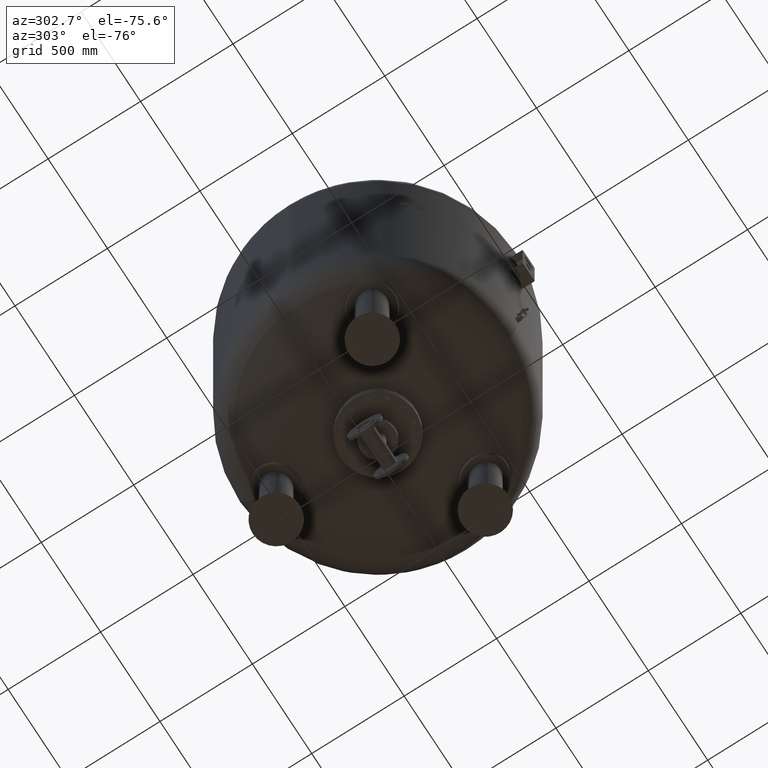
[diagram: clean part render]
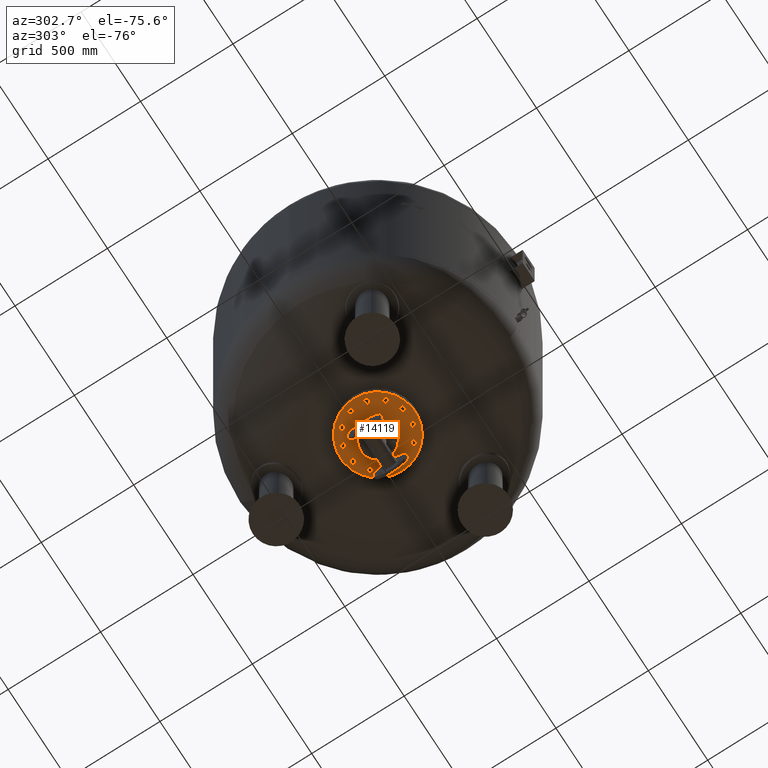
[diagram: same view with one face highlighted and labeled with its STEP entity id]
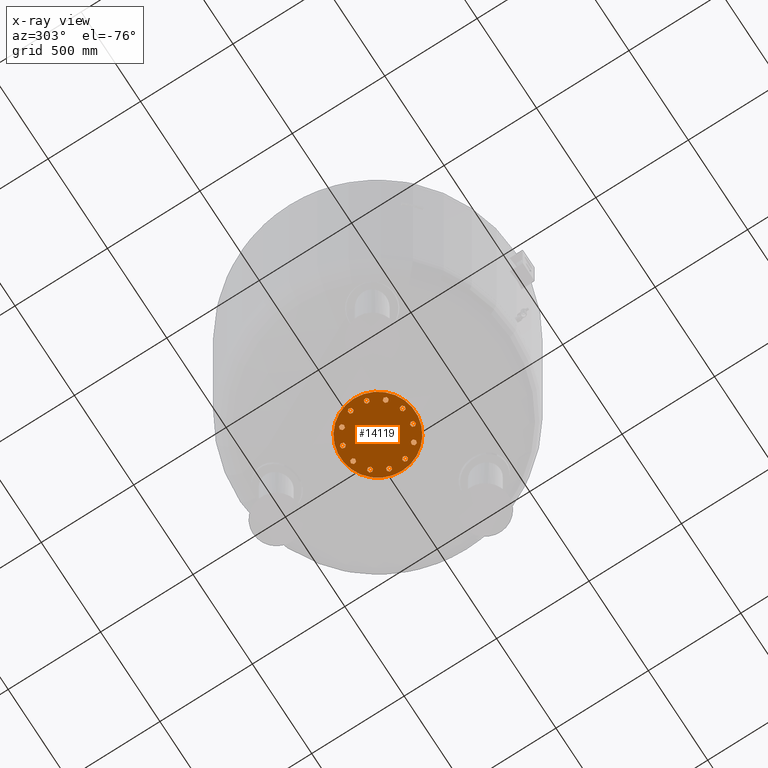
[diagram: x-ray of the same camera — body ghosted, the highlighted face saturated]
A machine part, auxiliary view. The second image highlights one B-rep face of the part: STEP entity #14119.
The next image is the same camera in x-ray: the body ghosted, the highlighted face saturated — about 0% of this face is hidden behind the body in this view.
In plain terms, the highlighted planar face has unit normal (0, 0, -1).
Its self-contained STEP definition (entity closure, byte-faithful):
#5555=CARTESIAN_POINT('',(202.500000000000000,-9.184851E-015,406.0));
#5556=VERTEX_POINT('',#5555);
#5572=CARTESIAN_POINT('',(-202.500000000000000,-3.398313E-014,406.0));
#5573=VERTEX_POINT('',#5572);
#5580=CARTESIAN_POINT('',(0.0,-9.184851E-015,406.0));
#5581=DIRECTION('',(0.0,0.0,1.0));
#5582=DIRECTION('',(1.0,0.0,0.0));
#5583=AXIS2_PLACEMENT_3D('',#5580,#5581,#5582);
#5584=CIRCLE('',#5583,202.500000000000000);
#5585=EDGE_CURVE('',#5573,#5556,#5584,.T.);
#7535=CARTESIAN_POINT('',(0.0,38.049999999999990,406.0));
#7536=VERTEX_POINT('',#7535);
#7552=CARTESIAN_POINT('',(-4.659627E-015,-38.050000000000011,406.0));
#7553=VERTEX_POINT('',#7552);
#7560=CARTESIAN_POINT('',(0.0,-9.184851E-015,406.0));
#7561=DIRECTION('',(0.0,0.0,1.0));
#7562=DIRECTION('',(0.0,1.0,0.0));
#7563=AXIS2_PLACEMENT_3D('',#7560,#7561,#7562);
#7564=CIRCLE('',#7563,38.049999999999997);
#7565=EDGE_CURVE('',#7536,#7553,#7564,.T.);
#7576=CARTESIAN_POINT('',(0.0,-9.184851E-015,406.0));
#7577=DIRECTION('',(0.0,0.0,1.0));
#7578=DIRECTION('',(0.0,1.0,0.0));
#7579=AXIS2_PLACEMENT_3D('',#7576,#7577,#7578);
#7580=CIRCLE('',#7579,38.049999999999997);
#7581=EDGE_CURVE('',#7553,#7536,#7580,.T.);
#11609=CARTESIAN_POINT('',(-157.729139400922860,30.104983413641001,406.0));
#11610=VERTEX_POINT('',#11609);
#11611=CARTESIAN_POINT('',(-148.288440171855850,40.247625971983254,406.0));
#11612=VERTEX_POINT('',#11611);
#11613=CARTESIAN_POINT('',(-157.729139400922860,30.104983413641001,406.0));
#11614=DIRECTION('',(0.681323780155013,0.731982176419128,0.0));
#11615=VECTOR('',#11614,13.856406460551087);
#11616=LINE('',#11613,#11615);
#11617=EDGE_CURVE('',#11610,#11612,#11616,.T.);
#11649=CARTESIAN_POINT('',(-171.233275132485970,33.209547496330096,406.0));
#11650=VERTEX_POINT('',#11649);
#11651=CARTESIAN_POINT('',(-171.233275132485970,33.209547496330096,406.0));
#11652=DIRECTION('',(0.974577049973894,-0.224052613607122,0.0));
#11653=VECTOR('',#11652,13.856406460551117);
#11654=LINE('',#11651,#11653);
#11655=EDGE_CURVE('',#11650,#11610,#11654,.T.);
#11680=CARTESIAN_POINT('',(-175.296711634982050,46.456754137361408,406.0));
#11681=VERTEX_POINT('',#11680);
#11682=CARTESIAN_POINT('',(-175.296711634982050,46.456754137361408,406.0));
#11683=DIRECTION('',(0.293253269818881,-0.956034790026249,0.0));
#11684=VECTOR('',#11683,13.856406460551076);
#11685=LINE('',#11682,#11684);
#11686=EDGE_CURVE('',#11681,#11650,#11685,.T.);
#11711=CARTESIAN_POINT('',(-152.351876674351930,53.494832613014573,406.0));
#11712=VERTEX_POINT('',#11711);
#11713=CARTESIAN_POINT('',(-148.288440171855850,40.247625971983254,406.0));
#11714=DIRECTION('',(-0.293253269818881,0.956034790026249,0.0));
#11715=VECTOR('',#11714,13.856406460551083);
#11716=LINE('',#11713,#11715);
#11717=EDGE_CURVE('',#11612,#11712,#11716,.T.);
#11742=CARTESIAN_POINT('',(-165.856012405915040,56.599396695703675,406.0));
#11743=VERTEX_POINT('',#11742);
#11744=CARTESIAN_POINT('',(-152.351876674351930,53.494832613014573,406.0));
#11745=DIRECTION('',(-0.974577049973894,0.224052613607123,0.0));
#11746=VECTOR('',#11745,13.856406460551119);
#11747=LINE('',#11744,#11746);
#11748=EDGE_CURVE('',#11712,#11743,#11747,.T.);
#11773=CARTESIAN_POINT('',(-165.856012405915040,56.599396695703675,406.0));
#11774=DIRECTION('',(-0.681323780155012,-0.731982176419129,0.0));
#11775=VECTOR('',#11774,13.856406460551096);
#11776=LINE('',#11773,#11775);
#11777=EDGE_CURVE('',#11743,#11681,#11776,.T.);
#11809=CARTESIAN_POINT('',(-121.544949931435720,104.936250117183760,406.0));
#11810=VERTEX_POINT('',#11809);
#11811=CARTESIAN_POINT('',(-108.297743290404380,108.999686619679820,406.0));
#11812=VERTEX_POINT('',#11811);
#11813=CARTESIAN_POINT('',(-121.544949931435720,104.936250117183760,406.0));
#11814=DIRECTION('',(0.956034790026250,0.293253269818880,0.0));
#11815=VECTOR('',#11814,13.856406460551101);
#11816=LINE('',#11813,#11815);
#11817=EDGE_CURVE('',#11810,#11812,#11816,.T.);
#11849=CARTESIAN_POINT('',(-131.687592489777960,114.376949346250780,406.0));
#11850=VERTEX_POINT('',#11849);
#11851=CARTESIAN_POINT('',(-131.687592489777960,114.376949346250780,406.0));
#11852=DIRECTION('',(0.731982176419127,-0.681323780155014,0.0));
#11853=VECTOR('',#11852,13.856406460551080);
#11854=LINE('',#11851,#11853);
#11855=EDGE_CURVE('',#11850,#11810,#11854,.T.);
#11880=CARTESIAN_POINT('',(-128.583028407088880,127.881085077813880,406.0));
#11881=VERTEX_POINT('',#11880);
#11882=CARTESIAN_POINT('',(-128.583028407088880,127.881085077813880,406.0));
#11883=DIRECTION('',(-0.224052613607122,-0.974577049973894,0.0));
#11884=VECTOR('',#11883,13.856406460551099);
#11885=LINE('',#11882,#11884);
#11886=EDGE_CURVE('',#11881,#11850,#11885,.T.);
#11911=CARTESIAN_POINT('',(-105.193179207715300,122.503822351242900,406.0));
#11912=VERTEX_POINT('',#11911);
#11913=CARTESIAN_POINT('',(-108.297743290404380,108.999686619679820,406.0));
#11914=DIRECTION('',(0.224052613607122,0.974577049973894,0.0));
#11915=VECTOR('',#11914,13.856406460551087);
#11916=LINE('',#11913,#11915);
#11917=EDGE_CURVE('',#11812,#11912,#11916,.T.);
#11942=CARTESIAN_POINT('',(-115.335821766057560,131.944521580309950,406.0));
#11943=VERTEX_POINT('',#11942);
#11944=CARTESIAN_POINT('',(-105.193179207715300,122.503822351242900,406.0));
#11945=DIRECTION('',(-0.731982176419127,0.681323780155014,0.0));
#11946=VECTOR('',#11945,13.856406460551121);
#11947=LINE('',#11944,#11946);
#11948=EDGE_CURVE('',#11912,#11943,#11947,.T.);
#11973=CARTESIAN_POINT('',(-115.335821766057560,131.944521580309950,406.0));
#11974=DIRECTION('',(-0.956034790026249,-0.293253269818881,0.0));
#11975=VECTOR('',#11974,13.856406460551076);
#11976=LINE('',#11973,#11975);
#11977=EDGE_CURVE('',#11943,#11881,#11976,.T.);
#12009=CARTESIAN_POINT('',(-52.792889283739193,151.649933345076730,406.0));
#12010=VERTEX_POINT('',#12009);
#12011=CARTESIAN_POINT('',(-39.288753552176118,148.545369262387680,406.0));
#12012=VERTEX_POINT('',#12011);
#12013=CARTESIAN_POINT('',(-52.792889283739193,151.649933345076730,406.0));
#12014=DIRECTION('',(0.974577049973894,-0.224052613607120,0.0));
#12015=VECTOR('',#12014,13.856406460551073);
#12016=LINE('',#12013,#12015);
#12017=EDGE_CURVE('',#12010,#12012,#12016,.T.);
#12049=CARTESIAN_POINT('',(-56.856325786235274,164.897139986108100,406.0));
#12050=VERTEX_POINT('',#12049);
#12051=CARTESIAN_POINT('',(-56.856325786235274,164.897139986108100,406.0));
#12052=DIRECTION('',(0.293253269818881,-0.956034790026249,0.0));
#12053=VECTOR('',#12052,13.856406460551133);
#12054=LINE('',#12051,#12053);
#12055=EDGE_CURVE('',#12050,#12010,#12054,.T.);
#12080=CARTESIAN_POINT('',(-47.415626557168267,175.039782544450330,406.0));
#12081=VERTEX_POINT('',#12080);
#12082=CARTESIAN_POINT('',(-47.415626557168267,175.039782544450330,406.0));
#12083=DIRECTION('',(-0.681323780155014,-0.731982176419128,0.0));
#12084=VECTOR('',#12083,13.856406460551069);
#12085=LINE('',#12082,#12084);
#12086=EDGE_CURVE('',#12081,#12050,#12085,.T.);
#12111=CARTESIAN_POINT('',(-29.848054323109103,158.688011820729910,406.0));
#12112=VERTEX_POINT('',#12111);
#12113=CARTESIAN_POINT('',(-39.288753552176118,148.545369262387680,406.0));
#12114=DIRECTION('',(0.681323780155014,0.731982176419127,0.0));
#12115=VECTOR('',#12114,13.856406460551076);
#12116=LINE('',#12113,#12115);
#12117=EDGE_CURVE('',#12012,#12112,#12116,.T.);
#12142=CARTESIAN_POINT('',(-33.911490825605156,171.935218461761250,406.0));
#12143=VERTEX_POINT('',#12142);
#12144=CARTESIAN_POINT('',(-29.848054323109103,158.688011820729910,406.0));
#12145=DIRECTION('',(-0.293253269818879,0.956034790026250,0.0));
#12146=VECTOR('',#12145,13.856406460551097);
#12147=LINE('',#12144,#12146);
#12148=EDGE_CURVE('',#12112,#12143,#12147,.T.);
#12173=CARTESIAN_POINT('',(-33.911490825605156,171.935218461761250,406.0));
#12174=DIRECTION('',(-0.974577049973894,0.224052613607121,0.0));
#12175=VECTOR('',#12174,13.856406460551113);
#12176=LINE('',#12173,#12175);
#12177=EDGE_CURVE('',#12143,#12081,#12176,.T.);
#12209=CARTESIAN_POINT('',(30.104983413641008,157.729139400922860,406.0));
#12210=VERTEX_POINT('',#12209);
#12211=CARTESIAN_POINT('',(40.247625971983268,148.288440171855850,406.0));
#12212=VERTEX_POINT('',#12211);
#12213=CARTESIAN_POINT('',(30.104983413641008,157.729139400922860,406.0));
#12214=DIRECTION('',(0.731982176419128,-0.681323780155013,0.0));
#12215=VECTOR('',#12214,13.856406460551090);
#12216=LINE('',#12213,#12215);
#12217=EDGE_CURVE('',#12210,#12212,#12216,.T.);
#12249=CARTESIAN_POINT('',(33.209547496330110,171.233275132485970,406.0));
#12250=VERTEX_POINT('',#12249);
#12251=CARTESIAN_POINT('',(33.209547496330110,171.233275132485970,406.0));
#12252=DIRECTION('',(-0.224052613607123,-0.974577049973894,0.0));
#12253=VECTOR('',#12252,13.856406460551119);
#12254=LINE('',#12251,#12253);
#12255=EDGE_CURVE('',#12250,#12210,#12254,.T.);
#12280=CARTESIAN_POINT('',(46.456754137361422,175.296711634982050,406.0));
#12281=VERTEX_POINT('',#12280);
#12282=CARTESIAN_POINT('',(46.456754137361422,175.296711634982050,406.0));
#12283=DIRECTION('',(-0.956034790026249,-0.293253269818881,0.0));
#12284=VECTOR('',#12283,13.856406460551076);
#12285=LINE('',#12282,#12284);
#12286=EDGE_CURVE('',#12281,#12250,#12285,.T.);
#12311=CARTESIAN_POINT('',(53.494832613014587,152.351876674351930,406.0));
#12312=VERTEX_POINT('',#12311);
#12313=CARTESIAN_POINT('',(40.247625971983268,148.288440171855850,406.0));
#12314=DIRECTION('',(0.956034790026249,0.293253269818881,0.0));
#12315=VECTOR('',#12314,13.856406460551083);
#12316=LINE('',#12313,#12315);
#12317=EDGE_CURVE('',#12212,#12312,#12316,.T.);
#12342=CARTESIAN_POINT('',(56.599396695703689,165.856012405915040,406.0));
#12343=VERTEX_POINT('',#12342);
#12344=CARTESIAN_POINT('',(53.494832613014587,152.351876674351930,406.0));
#12345=DIRECTION('',(0.224052613607123,0.974577049973894,0.0));
#12346=VECTOR('',#12345,13.856406460551119);
#12347=LINE('',#12344,#12346);
#12348=EDGE_CURVE('',#12312,#12343,#12347,.T.);
#12373=CARTESIAN_POINT('',(56.599396695703689,165.856012405915040,406.0));
#12374=DIRECTION('',(-0.731982176419129,0.681323780155012,0.0));
#12375=VECTOR('',#12374,13.856406460551096);
#12376=LINE('',#12373,#12375);
#12377=EDGE_CURVE('',#12343,#12281,#12376,.T.);
#12409=CARTESIAN_POINT('',(104.936250117183700,121.544949931435750,406.0));
#12410=VERTEX_POINT('',#12409);
#12411=CARTESIAN_POINT('',(108.999686619679760,108.297743290404440,406.0));
#12412=VERTEX_POINT('',#12411);
#12413=CARTESIAN_POINT('',(104.936250117183700,121.544949931435750,406.0));
#12414=DIRECTION('',(0.293253269818880,-0.956034790026249,0.0));
#12415=VECTOR('',#12414,13.856406460551073);
#12416=LINE('',#12413,#12415);
#12417=EDGE_CURVE('',#12410,#12412,#12416,.T.);
#12449=CARTESIAN_POINT('',(114.376949346250730,131.687592489778010,406.0));
#12450=VERTEX_POINT('',#12449);
#12451=CARTESIAN_POINT('',(114.376949346250730,131.687592489778010,406.0));
#12452=DIRECTION('',(-0.681323780155013,-0.731982176419128,0.0));
#12453=VECTOR('',#12452,13.856406460551101);
#12454=LINE('',#12451,#12453);
#12455=EDGE_CURVE('',#12450,#12410,#12454,.T.);
#12480=CARTESIAN_POINT('',(127.881085077813810,128.583028407088930,406.0));
#12481=VERTEX_POINT('',#12480);
#12482=CARTESIAN_POINT('',(127.881085077813810,128.583028407088930,406.0));
#12483=DIRECTION('',(-0.974577049973894,0.224052613607122,0.0));
#12484=VECTOR('',#12483,13.856406460551087);
#12485=LINE('',#12482,#12484);
#12486=EDGE_CURVE('',#12481,#12450,#12485,.T.);
#12511=CARTESIAN_POINT('',(122.503822351242850,105.193179207715360,406.0));
#12512=VERTEX_POINT('',#12511);
#12513=CARTESIAN_POINT('',(108.999686619679760,108.297743290404440,406.0));
#12514=DIRECTION('',(0.974577049973894,-0.224052613607122,0.0));
#12515=VECTOR('',#12514,13.856406460551087);
#12516=LINE('',#12513,#12515);
#12517=EDGE_CURVE('',#12412,#12512,#12516,.T.);
#12542=CARTESIAN_POINT('',(131.944521580309900,115.335821766057620,406.0));
#12543=VERTEX_POINT('',#12542);
#12544=CARTESIAN_POINT('',(122.503822351242850,105.193179207715360,406.0));
#12545=DIRECTION('',(0.681323780155014,0.731982176419127,0.0));
#12546=VECTOR('',#12545,13.856406460551121);
#12547=LINE('',#12544,#12546);
#12548=EDGE_CURVE('',#12512,#12543,#12547,.T.);
#12573=CARTESIAN_POINT('',(131.944521580309900,115.335821766057620,406.0));
#12574=DIRECTION('',(-0.293253269818882,0.956034790026249,0.0));
#12575=VECTOR('',#12574,13.856406460551081);
#12576=LINE('',#12573,#12575);
#12577=EDGE_CURVE('',#12543,#12481,#12576,.T.);
#12609=CARTESIAN_POINT('',(151.649933345076730,52.792889283739200,406.0));
#12610=VERTEX_POINT('',#12609);
#12611=CARTESIAN_POINT('',(148.545369262387650,39.288753552176111,406.0));
#12612=VERTEX_POINT('',#12611);
#12613=CARTESIAN_POINT('',(151.649933345076730,52.792889283739200,406.0));
#12614=DIRECTION('',(-0.224052613607122,-0.974577049973894,0.0));
#12615=VECTOR('',#12614,13.856406460551092);
#12616=LINE('',#12613,#12615);
#12617=EDGE_CURVE('',#12610,#12612,#12616,.T.);
#12649=CARTESIAN_POINT('',(164.897139986108100,56.856325786235281,406.0));
#12650=VERTEX_POINT('',#12649);
#12651=CARTESIAN_POINT('',(164.897139986108100,56.856325786235281,406.0));
#12652=DIRECTION('',(-0.956034790026249,-0.293253269818881,0.0));
#12653=VECTOR('',#12652,13.856406460551133);
#12654=LINE('',#12651,#12653);
#12655=EDGE_CURVE('',#12650,#12610,#12654,.T.);
#12680=CARTESIAN_POINT('',(175.039782544450300,47.415626557168245,406.0));
#12681=VERTEX_POINT('',#12680);
#12682=CARTESIAN_POINT('',(175.039782544450300,47.415626557168245,406.0));
#12683=DIRECTION('',(-0.731982176419126,0.681323780155016,0.0));
#12684=VECTOR('',#12683,13.856406460551069);
#12685=LINE('',#12682,#12684);
#12686=EDGE_CURVE('',#12681,#12650,#12685,.T.);
#12711=CARTESIAN_POINT('',(158.688011820729910,29.848054323109103,406.0));
#12712=VERTEX_POINT('',#12711);
#12713=CARTESIAN_POINT('',(148.545369262387650,39.288753552176111,406.0));
#12714=DIRECTION('',(0.731982176419128,-0.681323780155013,0.0));
#12715=VECTOR('',#12714,13.856406460551090);
#12716=LINE('',#12713,#12715);
#12717=EDGE_CURVE('',#12612,#12712,#12716,.T.);
#12742=CARTESIAN_POINT('',(171.935218461761250,33.911490825605156,406.0));
#12743=VERTEX_POINT('',#12742);
#12744=CARTESIAN_POINT('',(158.688011820729910,29.848054323109103,406.0));
#12745=DIRECTION('',(0.956034790026250,0.293253269818879,0.0));
#12746=VECTOR('',#12745,13.856406460551097);
#12747=LINE('',#12744,#12746);
#12748=EDGE_CURVE('',#12712,#12743,#12747,.T.);
#12773=CARTESIAN_POINT('',(171.935218461761250,33.911490825605156,406.0));
#12774=DIRECTION('',(0.224052613607120,0.974577049973894,0.0));
#12775=VECTOR('',#12774,13.856406460551087);
#12776=LINE('',#12773,#12775);
#12777=EDGE_CURVE('',#12743,#12681,#12776,.T.);
#12809=CARTESIAN_POINT('',(157.729139400922860,-30.104983413640994,406.0));
#12810=VERTEX_POINT('',#12809);
#12811=CARTESIAN_POINT('',(148.288440171855850,-40.247625971983261,406.0));
#12812=VERTEX_POINT('',#12811);
#12813=CARTESIAN_POINT('',(157.729139400922860,-30.104983413640994,406.0));
#12814=DIRECTION('',(-0.681323780155012,-0.731982176419129,0.0));
#12815=VECTOR('',#12814,13.856406460551096);
#12816=LINE('',#12813,#12815);
#12817=EDGE_CURVE('',#12810,#12812,#12816,.T.);
#12849=CARTESIAN_POINT('',(171.233275132486000,-33.209547496330110,406.0));
#12850=VERTEX_POINT('',#12849);
#12851=CARTESIAN_POINT('',(171.233275132486000,-33.209547496330110,406.0));
#12852=DIRECTION('',(-0.974577049973894,0.224052613607123,0.0));
#12853=VECTOR('',#12852,13.856406460551149);
#12854=LINE('',#12851,#12853);
#12855=EDGE_CURVE('',#12850,#12810,#12854,.T.);
#12880=CARTESIAN_POINT('',(175.296711634982050,-46.456754137361415,406.0));
#12881=VERTEX_POINT('',#12880);
#12882=CARTESIAN_POINT('',(175.296711634982050,-46.456754137361415,406.0));
#12883=DIRECTION('',(-0.293253269818880,0.956034790026250,0.0));
#12884=VECTOR('',#12883,13.856406460551062);
#12885=LINE('',#12882,#12884);
#12886=EDGE_CURVE('',#12881,#12850,#12885,.T.);
#12911=CARTESIAN_POINT('',(152.351876674351960,-53.494832613014594,406.0));
#12912=VERTEX_POINT('',#12911);
#12913=CARTESIAN_POINT('',(148.288440171855850,-40.247625971983261,406.0));
#12914=DIRECTION('',(0.293253269818883,-0.956034790026249,0.0));
#12915=VECTOR('',#12914,13.856406460551106);
#12916=LINE('',#12913,#12915);
#12917=EDGE_CURVE('',#12812,#12912,#12916,.T.);
#12942=CARTESIAN_POINT('',(165.856012405915070,-56.599396695703660,406.0));
#12943=VERTEX_POINT('',#12942);
#12944=CARTESIAN_POINT('',(152.351876674351960,-53.494832613014594,406.0));
#12945=DIRECTION('',(0.974577049973894,-0.224052613607121,0.0));
#12946=VECTOR('',#12945,13.856406460551110);
#12947=LINE('',#12944,#12946);
#12948=EDGE_CURVE('',#12912,#12943,#12947,.T.);
#12973=CARTESIAN_POINT('',(165.856012405915070,-56.599396695703660,406.0));
#12974=DIRECTION('',(0.681323780155012,0.731982176419129,0.0));
#12975=VECTOR('',#12974,13.856406460551062);
#12976=LINE('',#12973,#12975);
#12977=EDGE_CURVE('',#12943,#12881,#12976,.T.);
#13009=CARTESIAN_POINT('',(121.544949931435750,-104.936250117183680,406.0));
#13010=VERTEX_POINT('',#13009);
#13011=CARTESIAN_POINT('',(108.297743290404440,-108.999686619679760,406.0));
#13012=VERTEX_POINT('',#13011);
#13013=CARTESIAN_POINT('',(121.544949931435750,-104.936250117183680,406.0));
#13014=DIRECTION('',(-0.956034790026249,-0.293253269818882,0.0));
#13015=VECTOR('',#13014,13.856406460551081);
#13016=LINE('',#13013,#13015);
#13017=EDGE_CURVE('',#13010,#13012,#13016,.T.);
#13049=CARTESIAN_POINT('',(131.687592489778010,-114.376949346250730,406.0));
#13050=VERTEX_POINT('',#13049);
#13051=CARTESIAN_POINT('',(131.687592489778010,-114.376949346250730,406.0));
#13052=DIRECTION('',(-0.731982176419127,0.681323780155014,0.0));
#13053=VECTOR('',#13052,13.856406460551121);
#13054=LINE('',#13051,#13053);
#13055=EDGE_CURVE('',#13050,#13010,#13054,.T.);
#13080=CARTESIAN_POINT('',(128.583028407088930,-127.881085077813790,406.0));
#13081=VERTEX_POINT('',#13080);
#13082=CARTESIAN_POINT('',(128.583028407088930,-127.881085077813790,406.0));
#13083=DIRECTION('',(0.224052613607122,0.974577049973894,0.0));
#13084=VECTOR('',#13083,13.856406460551071);
#13085=LINE('',#13082,#13084);
#13086=EDGE_CURVE('',#13081,#13050,#13085,.T.);
#13111=CARTESIAN_POINT('',(105.193179207715360,-122.503822351242850,406.0));
#13112=VERTEX_POINT('',#13111);
#13113=CARTESIAN_POINT('',(108.297743290404440,-108.999686619679760,406.0));
#13114=DIRECTION('',(-0.224052613607122,-0.974577049973894,0.0));
#13115=VECTOR('',#13114,13.856406460551087);
#13116=LINE('',#13113,#13115);
#13117=EDGE_CURVE('',#13012,#13112,#13116,.T.);
#13142=CARTESIAN_POINT('',(115.335821766057620,-131.944521580309900,406.0));
#13143=VERTEX_POINT('',#13142);
#13144=CARTESIAN_POINT('',(105.193179207715360,-122.503822351242850,406.0));
#13145=DIRECTION('',(0.731982176419127,-0.681323780155014,0.0));
#13146=VECTOR('',#13145,13.856406460551121);
#13147=LINE('',#13144,#13146);
#13148=EDGE_CURVE('',#13112,#13143,#13147,.T.);
#13173=CARTESIAN_POINT('',(115.335821766057620,-131.944521580309900,406.0));
#13174=DIRECTION('',(0.956034790026249,0.293253269818883,0.0));
#13175=VECTOR('',#13174,13.856406460551085);
#13176=LINE('',#13173,#13175);
#13177=EDGE_CURVE('',#13143,#13081,#13176,.T.);
#13209=CARTESIAN_POINT('',(52.792889283739228,-151.649933345076730,406.0));
#13210=VERTEX_POINT('',#13209);
#13211=CARTESIAN_POINT('',(39.288753552176132,-148.545369262387680,406.0));
#13212=VERTEX_POINT('',#13211);
#13213=CARTESIAN_POINT('',(52.792889283739228,-151.649933345076730,406.0));
#13214=DIRECTION('',(-0.974577049973894,0.224052613607120,0.0));
#13215=VECTOR('',#13214,13.856406460551094);
#13216=LINE('',#13213,#13215);
#13217=EDGE_CURVE('',#13210,#13212,#13216,.T.);
#13249=CARTESIAN_POINT('',(56.856325786235296,-164.897139986108100,406.0));
#13250=VERTEX_POINT('',#13249);
#13251=CARTESIAN_POINT('',(56.856325786235296,-164.897139986108100,406.0));
#13252=DIRECTION('',(-0.293253269818880,0.956034790026250,0.0));
#13253=VECTOR('',#13252,13.856406460551129);
#13254=LINE('',#13251,#13253);
#13255=EDGE_CURVE('',#13250,#13210,#13254,.T.);
#13280=CARTESIAN_POINT('',(47.415626557168281,-175.039782544450300,406.0));
#13281=VERTEX_POINT('',#13280);
#13282=CARTESIAN_POINT('',(47.415626557168281,-175.039782544450300,406.0));
#13283=DIRECTION('',(0.681323780155015,0.731982176419126,0.0));
#13284=VECTOR('',#13283,13.856406460551055);
#13285=LINE('',#13282,#13284);
#13286=EDGE_CURVE('',#13281,#13250,#13285,.T.);
#13311=CARTESIAN_POINT('',(29.848054323109121,-158.688011820729910,406.0));
#13312=VERTEX_POINT('',#13311);
#13313=CARTESIAN_POINT('',(39.288753552176132,-148.545369262387680,406.0));
#13314=DIRECTION('',(-0.681323780155014,-0.731982176419127,0.0));
#13315=VECTOR('',#13314,13.856406460551073);
#13316=LINE('',#13313,#13315);
#13317=EDGE_CURVE('',#13212,#13312,#13316,.T.);
#13342=CARTESIAN_POINT('',(33.911490825605199,-171.935218461761280,406.0));
#13343=VERTEX_POINT('',#13342);
#13344=CARTESIAN_POINT('',(29.848054323109121,-158.688011820729910,406.0));
#13345=DIRECTION('',(0.293253269818880,-0.956034790026249,0.0));
#13346=VECTOR('',#13345,13.856406460551133);
#13347=LINE('',#13344,#13346);
#13348=EDGE_CURVE('',#13312,#13343,#13347,.T.);
#13373=CARTESIAN_POINT('',(33.911490825605199,-171.935218461761280,406.0));
#13374=DIRECTION('',(0.974577049973895,-0.224052613607118,0.0));
#13375=VECTOR('',#13374,13.856406460551074);
#13376=LINE('',#13373,#13375);
#13377=EDGE_CURVE('',#13343,#13281,#13376,.T.);
#13409=CARTESIAN_POINT('',(-30.104983413640952,-157.729139400922890,406.0));
#13410=VERTEX_POINT('',#13409);
#13411=CARTESIAN_POINT('',(-40.247625971983211,-148.288440171855880,406.0));
#13412=VERTEX_POINT('',#13411);
#13413=CARTESIAN_POINT('',(-30.104983413640952,-157.729139400922890,406.0));
#13414=DIRECTION('',(-0.731982176419128,0.681323780155013,0.0));
#13415=VECTOR('',#13414,13.856406460551090);
#13416=LINE('',#13413,#13415);
#13417=EDGE_CURVE('',#13410,#13412,#13416,.T.);
#13449=CARTESIAN_POINT('',(-33.209547496330039,-171.233275132486000,406.0));
#13450=VERTEX_POINT('',#13449);
#13451=CARTESIAN_POINT('',(-33.209547496330039,-171.233275132486000,406.0));
#13452=DIRECTION('',(0.224052613607122,0.974577049973894,0.0));
#13453=VECTOR('',#13452,13.856406460551115);
#13454=LINE('',#13451,#13453);
#13455=EDGE_CURVE('',#13450,#13410,#13454,.T.);
#13480=CARTESIAN_POINT('',(-46.456754137361351,-175.296711634982070,406.0));
#13481=VERTEX_POINT('',#13480);
#13482=CARTESIAN_POINT('',(-46.456754137361351,-175.296711634982070,406.0));
#13483=DIRECTION('',(0.956034790026249,0.293253269818881,0.0));
#13484=VECTOR('',#13483,13.856406460551076);
#13485=LINE('',#13482,#13484);
#13486=EDGE_CURVE('',#13481,#13450,#13485,.T.);
#13511=CARTESIAN_POINT('',(-53.494832613014523,-152.351876674351960,406.0));
#13512=VERTEX_POINT('',#13511);
#13513=CARTESIAN_POINT('',(-40.247625971983211,-148.288440171855880,406.0));
#13514=DIRECTION('',(-0.956034790026249,-0.293253269818881,0.0));
#13515=VECTOR('',#13514,13.856406460551076);
#13516=LINE('',#13513,#13515);
#13517=EDGE_CURVE('',#13412,#13512,#13516,.T.);
#13542=CARTESIAN_POINT('',(-56.599396695703625,-165.856012405915070,406.0));
#13543=VERTEX_POINT('',#13542);
#13544=CARTESIAN_POINT('',(-53.494832613014523,-152.351876674351960,406.0));
#13545=DIRECTION('',(-0.224052613607123,-0.974577049973894,0.0));
#13546=VECTOR('',#13545,13.856406460551119);
#13547=LINE('',#13544,#13546);
#13548=EDGE_CURVE('',#13512,#13543,#13547,.T.);
#13573=CARTESIAN_POINT('',(-56.599396695703625,-165.856012405915070,406.0));
#13574=DIRECTION('',(0.731982176419129,-0.681323780155012,0.0));
#13575=VECTOR('',#13574,13.856406460551101);
#13576=LINE('',#13573,#13575);
#13577=EDGE_CURVE('',#13543,#13481,#13576,.T.);
#13609=CARTESIAN_POINT('',(-104.936250117183660,-121.544949931435800,406.0));
#13610=VERTEX_POINT('',#13609);
#13611=CARTESIAN_POINT('',(-108.999686619679750,-108.297743290404470,406.0));
#13612=VERTEX_POINT('',#13611);
#13613=CARTESIAN_POINT('',(-104.936250117183660,-121.544949931435800,406.0));
#13614=DIRECTION('',(-0.293253269818882,0.956034790026249,0.0));
#13615=VECTOR('',#13614,13.856406460551094);
#13616=LINE('',#13613,#13615);
#13617=EDGE_CURVE('',#13610,#13612,#13616,.T.);
#13649=CARTESIAN_POINT('',(-114.376949346250710,-131.687592489778040,406.0));
#13650=VERTEX_POINT('',#13649);
#13651=CARTESIAN_POINT('',(-114.376949346250710,-131.687592489778040,406.0));
#13652=DIRECTION('',(0.681323780155015,0.731982176419126,0.0));
#13653=VECTOR('',#13652,13.856406460551110);
#13654=LINE('',#13651,#13653);
#13655=EDGE_CURVE('',#13650,#13610,#13654,.T.);
#13680=CARTESIAN_POINT('',(-127.881085077813760,-128.583028407088960,406.0));
#13681=VERTEX_POINT('',#13680);
#13682=CARTESIAN_POINT('',(-127.881085077813760,-128.583028407088960,406.0));
#13683=DIRECTION('',(0.974577049973894,-0.224052613607122,0.0));
#13684=VECTOR('',#13683,13.856406460551058);
#13685=LINE('',#13682,#13684);
#13686=EDGE_CURVE('',#13681,#13650,#13685,.T.);
#13711=CARTESIAN_POINT('',(-122.503822351242830,-105.193179207715390,406.0));
#13712=VERTEX_POINT('',#13711);
#13713=CARTESIAN_POINT('',(-108.999686619679750,-108.297743290404470,406.0));
#13714=DIRECTION('',(-0.974577049973894,0.224052613607122,0.0));
#13715=VECTOR('',#13714,13.856406460551087);
#13716=LINE('',#13713,#13715);
#13717=EDGE_CURVE('',#13612,#13712,#13716,.T.);
#13742=CARTESIAN_POINT('',(-131.944521580309870,-115.335821766057650,406.0));
#13743=VERTEX_POINT('',#13742);
#13744=CARTESIAN_POINT('',(-122.503822351242830,-105.193179207715390,406.0));
#13745=DIRECTION('',(-0.681323780155014,-0.731982176419127,0.0));
#13746=VECTOR('',#13745,13.856406460551110);
#13747=LINE('',#13744,#13746);
#13748=EDGE_CURVE('',#13712,#13743,#13747,.T.);
#13773=CARTESIAN_POINT('',(-131.944521580309870,-115.335821766057650,406.0));
#13774=DIRECTION('',(0.293253269818883,-0.956034790026249,0.0));
#13775=VECTOR('',#13774,13.856406460551085);
#13776=LINE('',#13773,#13775);
#13777=EDGE_CURVE('',#13743,#13681,#13776,.T.);
#13809=CARTESIAN_POINT('',(-151.649933345076730,-52.792889283739243,406.0));
#13810=VERTEX_POINT('',#13809);
#13811=CARTESIAN_POINT('',(-148.545369262387650,-39.288753552176154,406.0));
#13812=VERTEX_POINT('',#13811);
#13813=CARTESIAN_POINT('',(-151.649933345076730,-52.792889283739243,406.0));
#13814=DIRECTION('',(0.224052613607122,0.974577049973894,0.0));
#13815=VECTOR('',#13814,13.856406460551092);
#13816=LINE('',#13813,#13815);
#13817=EDGE_CURVE('',#13810,#13812,#13816,.T.);
#13849=CARTESIAN_POINT('',(-164.897139986108070,-56.856325786235317,406.0));
#13850=VERTEX_POINT('',#13849);
#13851=CARTESIAN_POINT('',(-164.897139986108070,-56.856325786235317,406.0));
#13852=DIRECTION('',(0.956034790026249,0.293253269818881,0.0));
#13853=VECTOR('',#13852,13.856406460551105);
#13854=LINE('',#13851,#13853);
#13855=EDGE_CURVE('',#13850,#13810,#13854,.T.);
#13880=CARTESIAN_POINT('',(-175.039782544450300,-47.415626557168309,406.0));
#13881=VERTEX_POINT('',#13880);
#13882=CARTESIAN_POINT('',(-175.039782544450300,-47.415626557168309,406.0));
#13883=DIRECTION('',(0.731982176419128,-0.681323780155014,0.0));
#13884=VECTOR('',#13883,13.856406460551069);
#13885=LINE('',#13882,#13884);
#13886=EDGE_CURVE('',#13881,#13850,#13885,.T.);
#13911=CARTESIAN_POINT('',(-158.688011820729910,-29.848054323109139,406.0));
#13912=VERTEX_POINT('',#13911);
#13913=CARTESIAN_POINT('',(-148.545369262387650,-39.288753552176154,406.0));
#13914=DIRECTION('',(-0.731982176419128,0.681323780155013,0.0));
#13915=VECTOR('',#13914,13.856406460551096);
#13916=LINE('',#13913,#13915);
#13917=EDGE_CURVE('',#13812,#13912,#13916,.T.);
#13942=CARTESIAN_POINT('',(-171.935218461761250,-33.911490825605220,406.0));
#13943=VERTEX_POINT('',#13942);
#13944=CARTESIAN_POINT('',(-158.688011820729910,-29.848054323109139,406.0));
#13945=DIRECTION('',(-0.956034790026249,-0.293253269818881,0.0));
#13946=VECTOR('',#13945,13.856406460551106);
#13947=LINE('',#13944,#13946);
#13948=EDGE_CURVE('',#13912,#13943,#13947,.T.);
#13973=CARTESIAN_POINT('',(-171.935218461761250,-33.911490825605220,406.0));
#13974=DIRECTION('',(-0.224052613607120,-0.974577049973894,0.0));
#13975=VECTOR('',#13974,13.856406460551087);
#13976=LINE('',#13973,#13975);
#13977=EDGE_CURVE('',#13943,#13881,#13976,.T.);
#14004=CARTESIAN_POINT('',(101.250000000000000,-9.184851E-015,406.0));
#14005=DIRECTION('',(0.0,0.0,-1.0));
#14006=DIRECTION('',(0.0,1.0,0.0));
#14007=AXIS2_PLACEMENT_3D('',#14004,#14005,#14006);
#14008=PLANE('',#14007);
#14009=CARTESIAN_POINT('',(0.0,-9.184851E-015,406.0));
#14010=DIRECTION('',(0.0,0.0,1.0));
#14011=DIRECTION('',(1.0,0.0,0.0));
#14012=AXIS2_PLACEMENT_3D('',#14009,#14010,#14011);
#14013=CIRCLE('',#14012,202.500000000000000);
#14014=EDGE_CURVE('',#5556,#5573,#14013,.T.);
#14015=ORIENTED_EDGE('',*,*,#14014,.F.);
#14016=ORIENTED_EDGE('',*,*,#5585,.F.);
#14017=EDGE_LOOP('',(#14015,#14016));
#14018=FACE_OUTER_BOUND('',#14017,.T.);
#14019=ORIENTED_EDGE('',*,*,#7565,.T.);
#14020=ORIENTED_EDGE('',*,*,#7581,.T.);
#14021=EDGE_LOOP('',(#14019,#14020));
#14022=FACE_BOUND('',#14021,.T.);
#14023=ORIENTED_EDGE('',*,*,#11617,.T.);
#14024=ORIENTED_EDGE('',*,*,#11717,.T.);
#14025=ORIENTED_EDGE('',*,*,#11748,.T.);
#14026=ORIENTED_EDGE('',*,*,#11777,.T.);
#14027=ORIENTED_EDGE('',*,*,#11686,.T.);
#14028=ORIENTED_EDGE('',*,*,#11655,.T.);
#14029=EDGE_LOOP('',(#14023,#14024,#14025,#14026,#14027,#14028));
#14030=FACE_BOUND('',#14029,.T.);
#14031=ORIENTED_EDGE('',*,*,#11817,.T.);
#14032=ORIENTED_EDGE('',*,*,#11917,.T.);
#14033=ORIENTED_EDGE('',*,*,#11948,.T.);
#14034=ORIENTED_EDGE('',*,*,#11977,.T.);
#14035=ORIENTED_EDGE('',*,*,#11886,.T.);
#14036=ORIENTED_EDGE('',*,*,#11855,.T.);
#14037=EDGE_LOOP('',(#14031,#14032,#14033,#14034,#14035,#14036));
#14038=FACE_BOUND('',#14037,.T.);
#14039=ORIENTED_EDGE('',*,*,#12017,.T.);
#14040=ORIENTED_EDGE('',*,*,#12117,.T.);
#14041=ORIENTED_EDGE('',*,*,#12148,.T.);
#14042=ORIENTED_EDGE('',*,*,#12177,.T.);
#14043=ORIENTED_EDGE('',*,*,#12086,.T.);
#14044=ORIENTED_EDGE('',*,*,#12055,.T.);
#14045=EDGE_LOOP('',(#14039,#14040,#14041,#14042,#14043,#14044));
#14046=FACE_BOUND('',#14045,.T.);
#14047=ORIENTED_EDGE('',*,*,#12217,.T.);
#14048=ORIENTED_EDGE('',*,*,#12317,.T.);
#14049=ORIENTED_EDGE('',*,*,#12348,.T.);
#14050=ORIENTED_EDGE('',*,*,#12377,.T.);
#14051=ORIENTED_EDGE('',*,*,#12286,.T.);
#14052=ORIENTED_EDGE('',*,*,#12255,.T.);
#14053=EDGE_LOOP('',(#14047,#14048,#14049,#14050,#14051,#14052));
#14054=FACE_BOUND('',#14053,.T.);
#14055=ORIENTED_EDGE('',*,*,#12417,.T.);
#14056=ORIENTED_EDGE('',*,*,#12517,.T.);
#14057=ORIENTED_EDGE('',*,*,#12548,.T.);
#14058=ORIENTED_EDGE('',*,*,#12577,.T.);
#14059=ORIENTED_EDGE('',*,*,#12486,.T.);
#14060=ORIENTED_EDGE('',*,*,#12455,.T.);
#14061=EDGE_LOOP('',(#14055,#14056,#14057,#14058,#14059,#14060));
#14062=FACE_BOUND('',#14061,.T.);
#14063=ORIENTED_EDGE('',*,*,#12617,.T.);
#14064=ORIENTED_EDGE('',*,*,#12717,.T.);
#14065=ORIENTED_EDGE('',*,*,#12748,.T.);
#14066=ORIENTED_EDGE('',*,*,#12777,.T.);
#14067=ORIENTED_EDGE('',*,*,#12686,.T.);
#14068=ORIENTED_EDGE('',*,*,#12655,.T.);
#14069=EDGE_LOOP('',(#14063,#14064,#14065,#14066,#14067,#14068));
#14070=FACE_BOUND('',#14069,.T.);
#14071=ORIENTED_EDGE('',*,*,#12817,.T.);
#14072=ORIENTED_EDGE('',*,*,#12917,.T.);
#14073=ORIENTED_EDGE('',*,*,#12948,.T.);
#14074=ORIENTED_EDGE('',*,*,#12977,.T.);
#14075=ORIENTED_EDGE('',*,*,#12886,.T.);
#14076=ORIENTED_EDGE('',*,*,#12855,.T.);
#14077=EDGE_LOOP('',(#14071,#14072,#14073,#14074,#14075,#14076));
#14078=FACE_BOUND('',#14077,.T.);
#14079=ORIENTED_EDGE('',*,*,#13017,.T.);
#14080=ORIENTED_EDGE('',*,*,#13117,.T.);
#14081=ORIENTED_EDGE('',*,*,#13148,.T.);
#14082=ORIENTED_EDGE('',*,*,#13177,.T.);
#14083=ORIENTED_EDGE('',*,*,#13086,.T.);
#14084=ORIENTED_EDGE('',*,*,#13055,.T.);
#14085=EDGE_LOOP('',(#14079,#14080,#14081,#14082,#14083,#14084));
#14086=FACE_BOUND('',#14085,.T.);
#14087=ORIENTED_EDGE('',*,*,#13217,.T.);
#14088=ORIENTED_EDGE('',*,*,#13317,.T.);
#14089=ORIENTED_EDGE('',*,*,#13348,.T.);
#14090=ORIENTED_EDGE('',*,*,#13377,.T.);
#14091=ORIENTED_EDGE('',*,*,#13286,.T.);
#14092=ORIENTED_EDGE('',*,*,#13255,.T.);
#14093=EDGE_LOOP('',(#14087,#14088,#14089,#14090,#14091,#14092));
#14094=FACE_BOUND('',#14093,.T.);
#14095=ORIENTED_EDGE('',*,*,#13417,.T.);
#14096=ORIENTED_EDGE('',*,*,#13517,.T.);
#14097=ORIENTED_EDGE('',*,*,#13548,.T.);
#14098=ORIENTED_EDGE('',*,*,#13577,.T.);
#14099=ORIENTED_EDGE('',*,*,#13486,.T.);
#14100=ORIENTED_EDGE('',*,*,#13455,.T.);
#14101=EDGE_LOOP('',(#14095,#14096,#14097,#14098,#14099,#14100));
#14102=FACE_BOUND('',#14101,.T.);
#14103=ORIENTED_EDGE('',*,*,#13617,.T.);
#14104=ORIENTED_EDGE('',*,*,#13717,.T.);
#14105=ORIENTED_EDGE('',*,*,#13748,.T.);
#14106=ORIENTED_EDGE('',*,*,#13777,.T.);
#14107=ORIENTED_EDGE('',*,*,#13686,.T.);
#14108=ORIENTED_EDGE('',*,*,#13655,.T.);
#14109=EDGE_LOOP('',(#14103,#14104,#14105,#14106,#14107,#14108));
#14110=FACE_BOUND('',#14109,.T.);
#14111=ORIENTED_EDGE('',*,*,#13817,.T.);
#14112=ORIENTED_EDGE('',*,*,#13917,.T.);
#14113=ORIENTED_EDGE('',*,*,#13948,.T.);
#14114=ORIENTED_EDGE('',*,*,#13977,.T.);
#14115=ORIENTED_EDGE('',*,*,#13886,.T.);
#14116=ORIENTED_EDGE('',*,*,#13855,.T.);
#14117=EDGE_LOOP('',(#14111,#14112,#14113,#14114,#14115,#14116));
#14118=FACE_BOUND('',#14117,.T.);
#14119=ADVANCED_FACE('',(#14018,#14022,#14030,#14038,#14046,#14054,#14062,#14070,#14078,#14086,#14094,#14102,#14110,#14118),#14008,.T.);